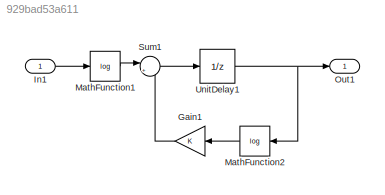
MODEL slx_929bad53a611
KIND model
BLOCK [Gain] Gain1
  OutDataTypeStr = Inherit: Inherit via internal rule
  ParamDataTypeStr = Inherit: Inherit via internal rule
  SaturateOnIntegerOverflow = off
BLOCK [Inport] In1
  IconDisplay = Port number
BLOCK [Math] MathFunction1
  Operator = log
  Ports = [1, 1]
BLOCK [Math] MathFunction2
  Operator = log
  Ports = [1, 1]
BLOCK [Outport] Out1
  IconDisplay = Port number
BLOCK [Sum] Sum1
  IconShape = round
  InputSameDT = off
  Inputs = |++
  OutDataTypeStr = Inherit: Inherit via internal rule
  Ports = [2, 1]
  SaturateOnIntegerOverflow = off
BLOCK [UnitDelay] UnitDelay1
  InputProcessing = Elements as channels (sample based)
  SampleTime = -1
LINE Gain1:1 -> Sum1:2
LINE In1:1 -> MathFunction1:1
LINE MathFunction1:1 -> Sum1:1
LINE MathFunction2:1 -> Gain1:1
LINE Sum1:1 -> UnitDelay1:1
NET UnitDelay1:1 -> MathFunction2:1, Out1:1
note: NET lines group one-source signal fan-out (src -> all destinations, sorted); 1:1 wires keep LINE
